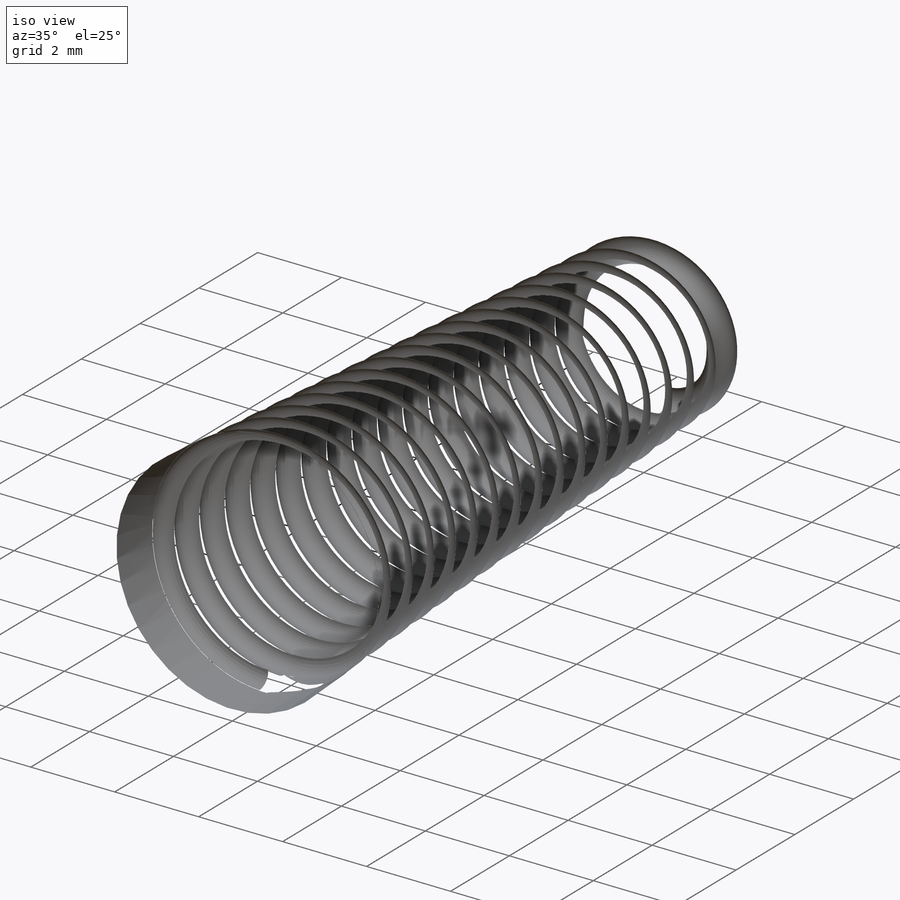
[diagram: iso view]
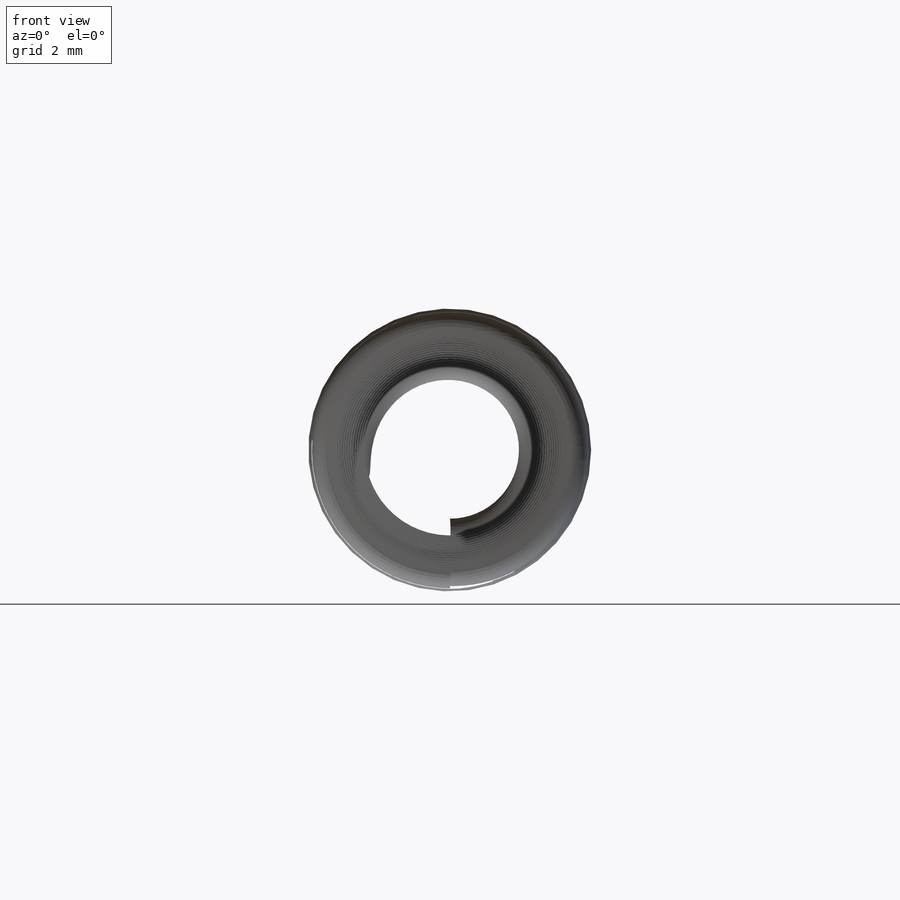
[diagram: front view]
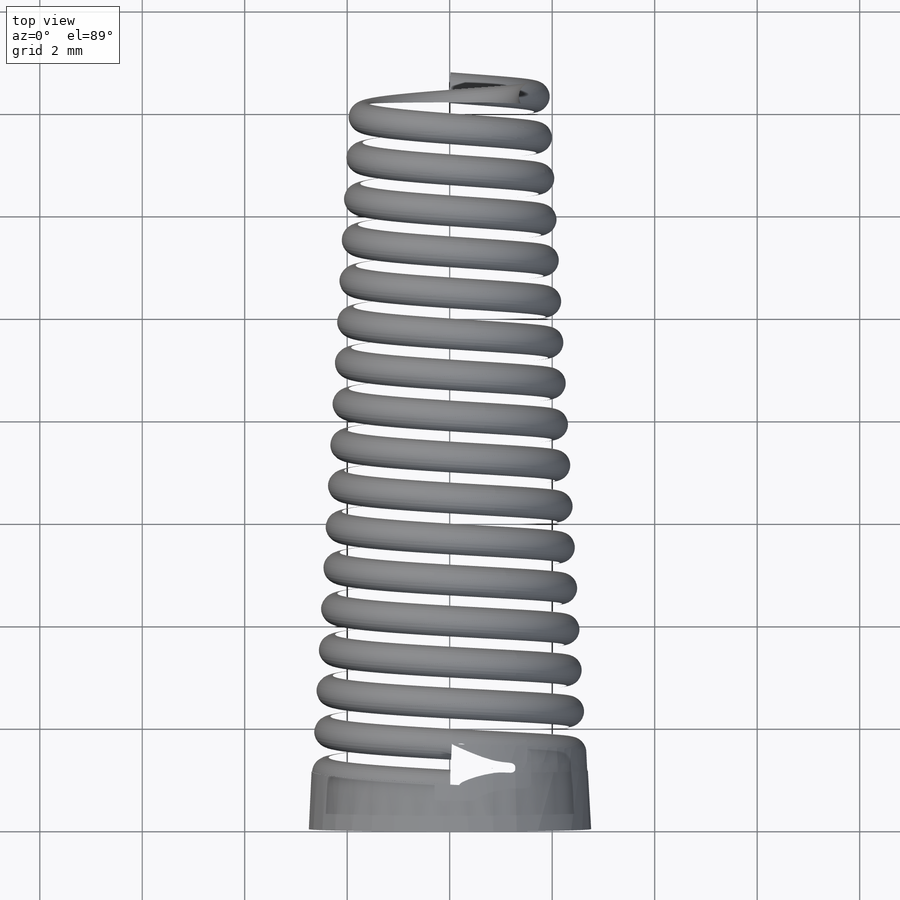
[diagram: top view]
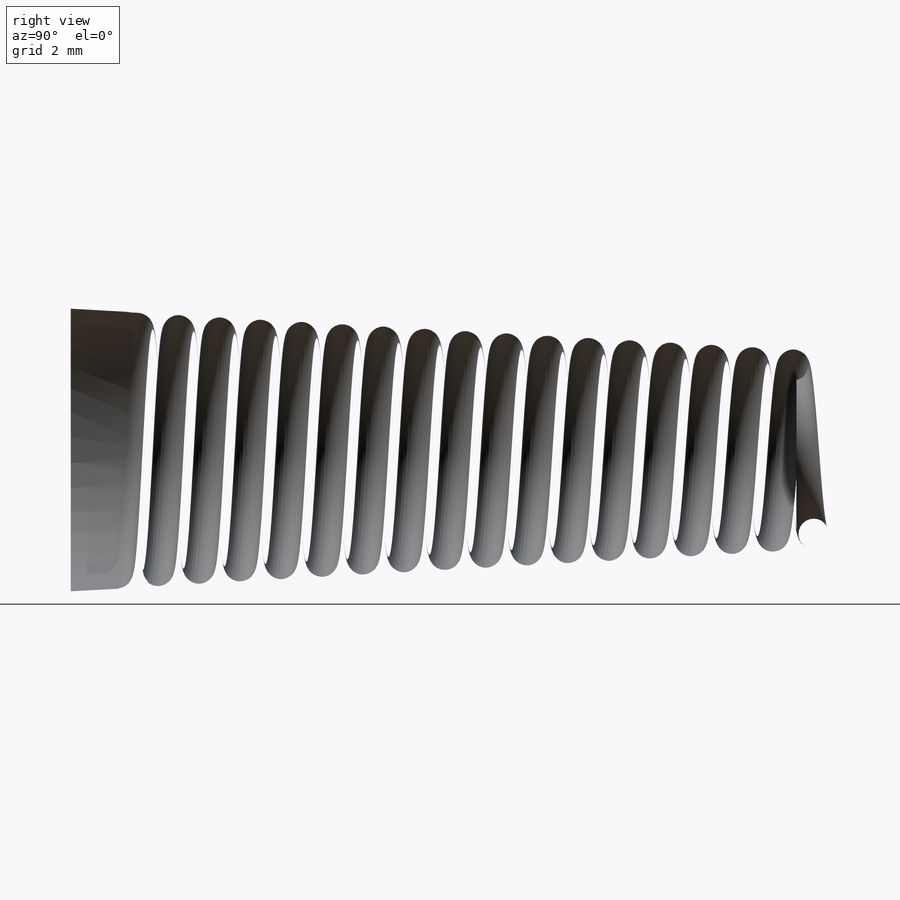
[diagram: right view]
SOLIDWORKS PART (.sldprt)
format: sldprt  version: not decoded by parser v0  size: 3,923,968 bytes
history: native  units: mm
features: sketch x15, sweep x5, cut_extrude x2, plane x2, helix x2, material x1, extrude x1, revolve x1 (+11 scaffold rows collapsed)
feature tree (40):
  scaffold x11  (default folders/planes/origin — collapsed)
  material  "Material <not specified>"
  sketch  "Sketch1"  dims[D1=7.0mm]
  extrude  "Boss-Extrude1"  Depth=16mm
  sketch  "Sketch2"  dims[D1=5.52mm]
  cut_extrude  "Cut-Extrude1"  Depth=1.14mm
  plane  "Plane1"  Offset=0.9mm
  sketch  "Sketch5"  dims[D1=4.8mm]
  cut_extrude  "Cut-Extrude2"  Depth=13.26mm
  sketch  "Sketch8"  dims[D1=4.8mm]
  helix  "Helix/Spiral1"  Pitch=13.6mm
  sketch  "3DSketch1"
  plane  "Plane3"
  sketch  "Sketch9"  dims[c1.D1=0.6mm c1.D5=0.07mm c1.D2=~1.267942mm c2.D2=3.2deg c2.D3=0.8mm c2.D4=0.135mm]
  sweep  "Sweep1"
  sketch  "Sketch10"  dims[D1=0.6mm]
  sweep  "Cut-Sweep1"
  sketch  "Sketch11"  dims[D1=4.8mm]
  helix  "Helix/Spiral2"  Pitch=1.6mm
  sketch  "3DSketch2"
  sketch  "Sketch12"  dims[D1=0.0mm]
  sweep  "Cut-Sweep2"
  sketch  "Sketch13"
  sweep  "Cut-Sweep4"
  sketch  "3DSketch2<2>"
  sketch  "Sketch14"  dims[D1=0.0mm]
  sweep  "Cut-Sweep5"
  sketch  "3DSketch2<3>"
  sketch  "Sketch16"  dims[D1=0.0mm]
  revolve  "Revolve1"  Angle=10.980649deg
decode coverage: 16 of 26 modeling features carry decoded parameters
note: ~ marks probable driven/reference dimensions
summary: profile_refs inferred from adjacent sketches, not decoded
note: suppression state not decoded; provenance and decode notes live in map.json
